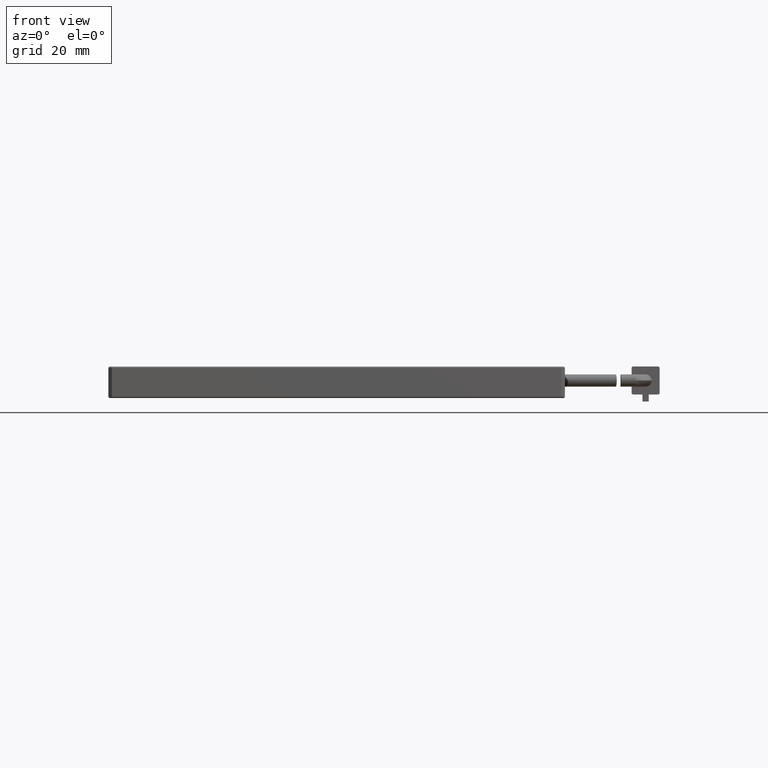
[diagram: clean part render]
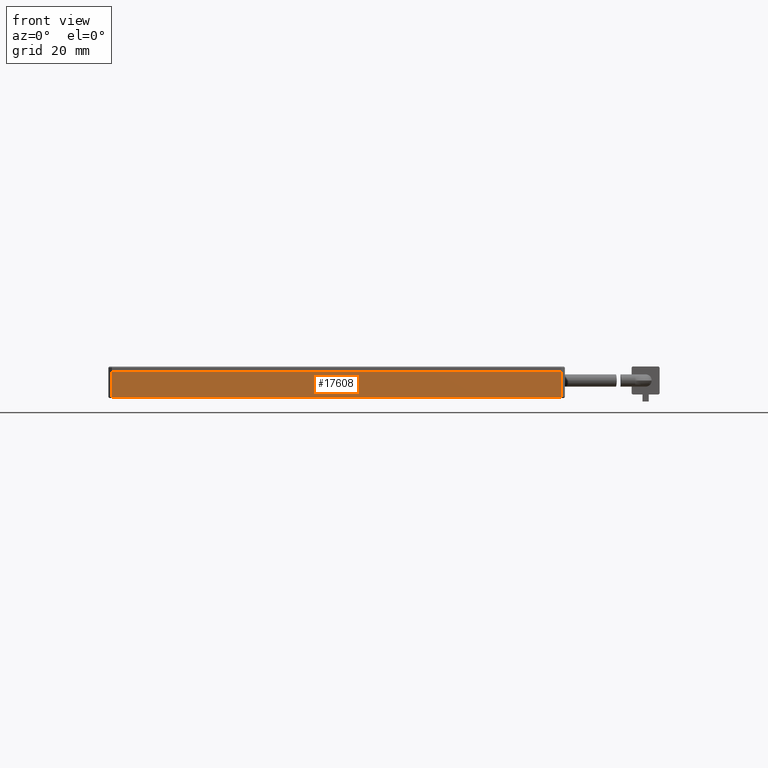
[diagram: same view with one face highlighted and labeled with its STEP entity id]
A machine part, front view. The second image highlights one B-rep face of the part: STEP entity #17608.
In plain terms, the highlighted planar face has unit normal (0, 1, 0).
Its self-contained STEP definition (entity closure, byte-faithful):
#647 = EDGE_CURVE ( 'NONE', #16121, #9307, #18817, .T. ) ;
#722 = CARTESIAN_POINT ( 'NONE',  ( -37.87092592592590300, -40.94055555555554800, -2.699999999999977100 ) ) ;
#848 = LINE ( 'NONE', #12680, #10414 ) ;
#1246 = ORIENTED_EDGE ( 'NONE', *, *, #11105, .F. ) ;
#1531 = VERTEX_POINT ( 'NONE', #7769 ) ;
#1661 = ORIENTED_EDGE ( 'NONE', *, *, #17715, .F. ) ;
#1755 = PLANE ( 'NONE',  #13596 ) ;
#2174 = CARTESIAN_POINT ( 'NONE',  ( 90.12907407407406900, -40.94055555555554800, 4.500000000000000000 ) ) ;
#3189 = ORIENTED_EDGE ( 'NONE', *, *, #647, .T. ) ;
#4070 = VERTEX_POINT ( 'NONE', #722 ) ;
#4399 = CARTESIAN_POINT ( 'NONE',  ( -38.87092592592590300, -40.94055555555554800, -2.699999999999977500 ) ) ;
#4456 = DIRECTION ( 'NONE',  ( -1.000000000000000000, 0.0000000000000000000, -0.0000000000000000000 ) ) ;
#4675 = CARTESIAN_POINT ( 'NONE',  ( -37.87092592592590300, -40.94055555555554800, 4.500000000000000000 ) ) ;
#5389 = CARTESIAN_POINT ( 'NONE',  ( 90.12907407407409700, -40.94055555555554800, 4.500000000000000000 ) ) ;
#5966 = CARTESIAN_POINT ( 'NONE',  ( -38.87092592592590300, -40.94055555555554800, 4.500000000000000000 ) ) ;
#7769 = CARTESIAN_POINT ( 'NONE',  ( 90.12907407407409700, -40.94055555555554800, -2.699999999999980200 ) ) ;
#8790 = EDGE_LOOP ( 'NONE', ( #1246, #1661, #3189, #13202 ) ) ;
#8958 = LINE ( 'NONE', #4399, #15102 ) ;
#9307 = VERTEX_POINT ( 'NONE', #4675 ) ;
#9983 = VECTOR ( 'NONE', #4456, 1000.000000000000000 ) ;
#10007 = FACE_OUTER_BOUND ( 'NONE', #8790, .T. ) ;
#10414 = VECTOR ( 'NONE', #15829, 1000.000000000000000 ) ;
#10933 = CARTESIAN_POINT ( 'NONE',  ( -38.87092592592590300, -40.94055555555554800, 4.500000000000000000 ) ) ;
#11105 = EDGE_CURVE ( 'NONE', #1531, #4070, #8958, .T. ) ;
#12680 = CARTESIAN_POINT ( 'NONE',  ( -37.87092592592590300, -40.94055555555554800, 4.500000000000000000 ) ) ;
#12716 = DIRECTION ( 'NONE',  ( 0.0000000000000000000, 1.000000000000000000, 0.0000000000000000000 ) ) ;
#13129 = DIRECTION ( 'NONE',  ( -0.0000000000000000000, 0.0000000000000000000, -1.000000000000000000 ) ) ;
#13202 = ORIENTED_EDGE ( 'NONE', *, *, #13868, .F. ) ;
#13445 = VECTOR ( 'NONE', #13129, 1000.000000000000000 ) ;
#13596 = AXIS2_PLACEMENT_3D ( 'NONE', #10933, #12716, #14236 ) ;
#13868 = EDGE_CURVE ( 'NONE', #4070, #9307, #848, .T. ) ;
#14236 = DIRECTION ( 'NONE',  ( 0.0000000000000000000, -0.0000000000000000000, 1.000000000000000000 ) ) ;
#15102 = VECTOR ( 'NONE', #16879, 1000.000000000000000 ) ;
#15829 = DIRECTION ( 'NONE',  ( 0.0000000000000000000, -0.0000000000000000000, 1.000000000000000000 ) ) ;
#16121 = VERTEX_POINT ( 'NONE', #5389 ) ;
#16879 = DIRECTION ( 'NONE',  ( -1.000000000000000000, -0.0000000000000000000, -0.0000000000000000000 ) ) ;
#17608 = ADVANCED_FACE ( 'NONE', ( #10007 ), #1755, .F. ) ;
#17715 = EDGE_CURVE ( 'NONE', #16121, #1531, #19319, .T. ) ;
#18817 = LINE ( 'NONE', #5966, #9983 ) ;
#19319 = LINE ( 'NONE', #2174, #13445 ) ;